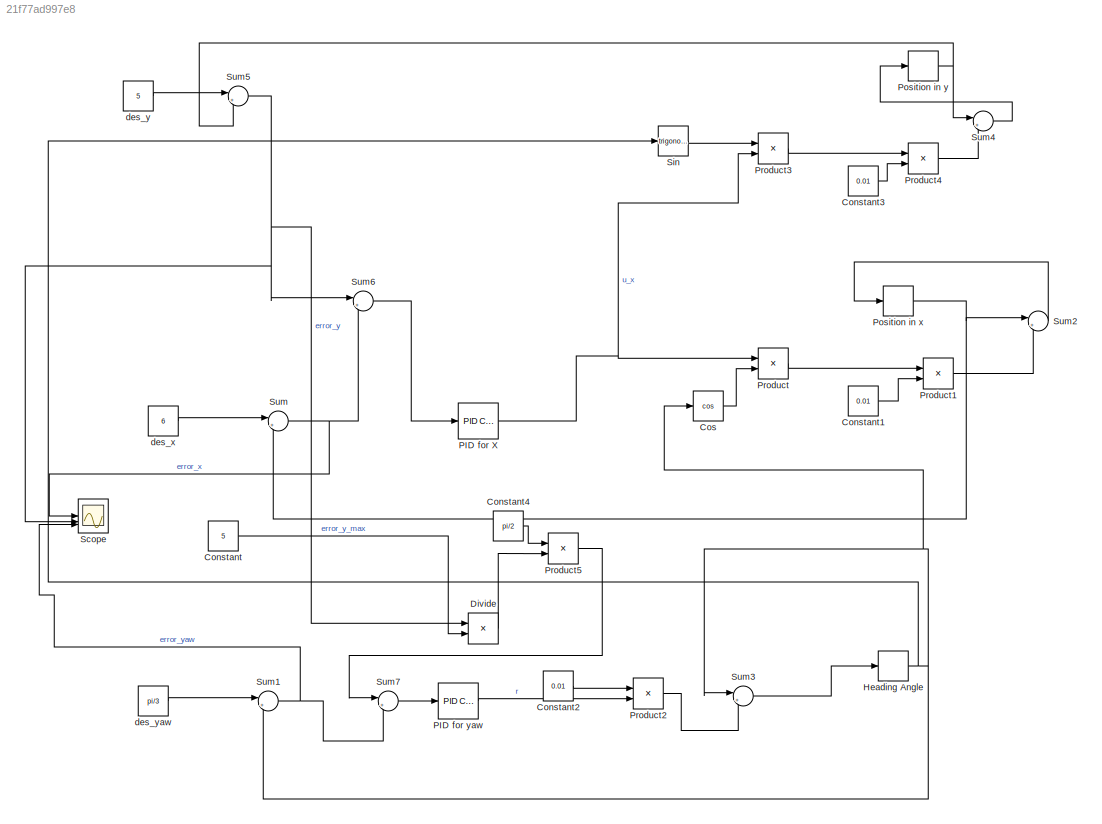
MODEL slx_21f77ad997e8
KIND model
CONFIG AbsTol = auto
CONFIG EnableMultiTasking = off
CONFIG FixedStep = auto
CONFIG MaxStep = auto
CONFIG MinStep = auto
CONFIG RelTol = 1e-3
CONFIG SampleTimeConstraint = Unconstrained
CONFIG SolverName = VariableStepAuto
CONFIG StartTime = 0.0
CONFIG StopTime = 20.0
BLOCK [Constant] Constant
  Value = 5
BLOCK [Constant] Constant1
  Value = 0.01
BLOCK [Constant] Constant2
  Value = 0.01
BLOCK [Constant] Constant3
  Value = 0.01
BLOCK [Constant] Constant4
  Value = pi/2
BLOCK [Trigonometry] Cos
  Operator = cos
BLOCK [Product] Divide
  Inputs = */
BLOCK [Memory] Heading Angle
BLOCK [Reference] PID for X  REF=slpidlib/PID Controller
  LibrarySourceBlock = simulink/Continuous/PID Controller
  SourceBlock = slpidlib/PID Controller
  SourceType = PID 1dof
BLOCK [Reference] PID for yaw  REF=slpidlib/PID Controller
  LibrarySourceBlock = simulink/Continuous/PID Controller
  SourceBlock = slpidlib/PID Controller
  SourceType = PID 1dof
BLOCK [Memory] Position in x
BLOCK [Memory] Position in y
BLOCK [Product] Product
BLOCK [Product] Product1
BLOCK [Product] Product2
BLOCK [Product] Product3
BLOCK [Product] Product4
BLOCK [Product] Product5
BLOCK [Scope] Scope
  Floating = off
  NumInputPorts = 3
  ScopeSpecificationString = Simulink.scopes.TimeScopeBlockCfg('CurrentConfiguration', extmgr.ConfigurationSet(extmgr.Configuration('Core','General UI',true),extmgr.Configuration('Core','Source UI',true),extmgr.Configuration('Sources','WiredSimulink',true),extmgr.Configuration('Visuals','Time Domain',true,'SerializedDisplays',{struct('MinYLimReal','-6.77631','MaxYLimReal','24.76306','YLabelReal','','MinYLimMag','0.00000','Max...<+1478ch>
BLOCK [Trigonometry] Sin
BLOCK [Sum] Sum
  Inputs = |+-
BLOCK [Sum] Sum1
  Inputs = |+-
BLOCK [Sum] Sum2
  Inputs = |++
BLOCK [Sum] Sum3
  Inputs = |++
BLOCK [Sum] Sum4
  Inputs = |++
BLOCK [Sum] Sum5
  Inputs = |+-
BLOCK [Sum] Sum6
  Inputs = |++
BLOCK [Sum] Sum7
  Inputs = |++
BLOCK [Constant] des_x
  Value = 6
BLOCK [Constant] des_y
  Value = 5
BLOCK [Constant] des_yaw
  Value = pi/3
LINE Constant1:1 -> Product1:2
LINE Constant2:1 -> Product2:1
LINE Constant3:1 -> Product4:2
LINE Constant4:1 -> Product5:1
LINE Constant:1 -> Divide:2
LINE Cos:1 -> Product:2
LINE Divide:1 -> Product5:2
NET Heading Angle:1 -> Cos:1, Sin:1, Sum1:2, Sum3:1
NET PID for X:1 -> Product3:2, Product:1
LINE PID for yaw:1 -> Product2:2
NET Position in x:1 -> Sum2:1, Sum:2
NET Position in y:1 -> Sum4:1, Sum5:2
LINE Product1:1 -> Sum2:2
LINE Product2:1 -> Sum3:2
LINE Product3:1 -> Product4:1
LINE Product4:1 -> Sum4:2
LINE Product5:1 -> Sum7:1
LINE Product:1 -> Product1:1
LINE Sin:1 -> Product3:1
NET Sum1:1 -> Scope:3, Sum7:2
LINE Sum2:1 -> Position in x:1
LINE Sum3:1 -> Heading Angle:1
LINE Sum4:1 -> Position in y:1
NET Sum5:1 -> Divide:1, Scope:2, Sum6:1
LINE Sum6:1 -> PID for X:1
LINE Sum7:1 -> PID for yaw:1
NET Sum:1 -> Scope:1, Sum6:2
LINE des_x:1 -> Sum:1
LINE des_y:1 -> Sum5:1
LINE des_yaw:1 -> Sum1:1
note: NET lines group one-source signal fan-out (src -> all destinations, sorted); 1:1 wires keep LINE
